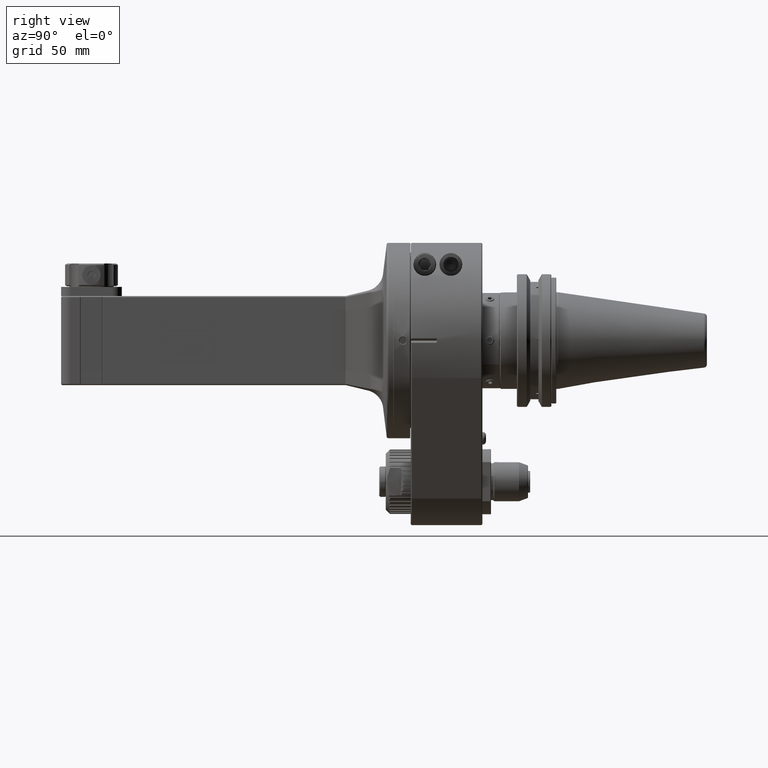
[diagram: clean part render]
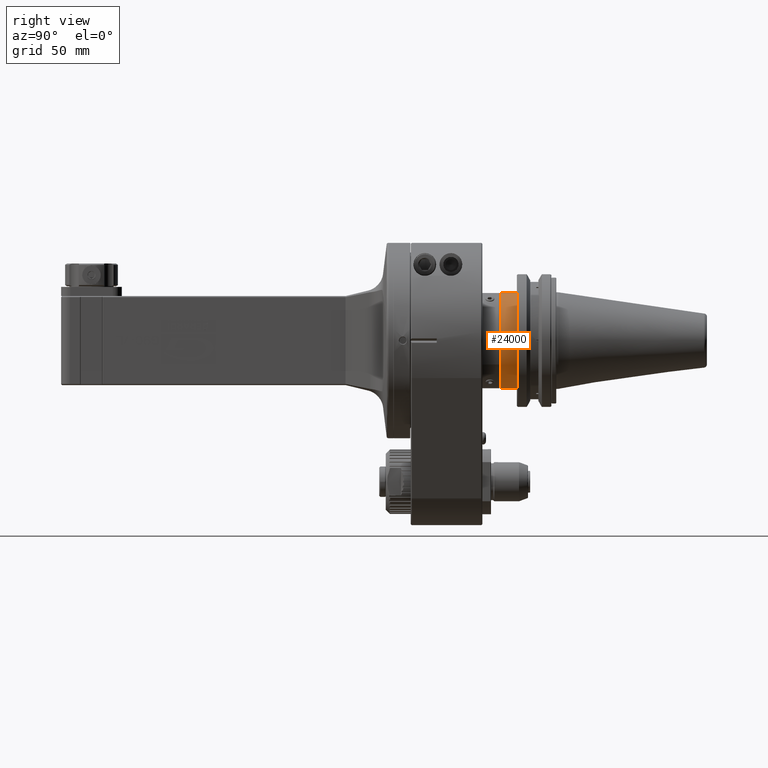
[diagram: same view with one face highlighted and labeled with its STEP entity id]
A machine part, right view. The second image highlights one B-rep face of the part: STEP entity #24000.
In plain terms, the highlighted cylindrical surface (bore or boss wall) has radius 22.225 mm, axis along (0, 1, 0).
Its self-contained STEP definition (entity closure, byte-faithful):
#2682=LINE('',#45828,#4757);
#4757=VECTOR('',#32634,22.225);
#5168=CYLINDRICAL_SURFACE('',#26280,22.225);
#6554=FACE_OUTER_BOUND('',#8055,.T.);
#8055=EDGE_LOOP('',(#21253,#21254,#21255,#21256,#21257));
#8992=CIRCLE('',#26024,22.225);
#9109=CIRCLE('',#26281,22.225);
#9110=CIRCLE('',#26282,22.225);
#11086=VERTEX_POINT('',#44938);
#11262=VERTEX_POINT('',#45827);
#11263=VERTEX_POINT('',#45829);
#14323=EDGE_CURVE('',#11086,#11086,#8992,.T.);
#14627=EDGE_CURVE('',#11086,#11262,#2682,.T.);
#14628=EDGE_CURVE('',#11262,#11263,#9109,.T.);
#14629=EDGE_CURVE('',#11263,#11262,#9110,.T.);
#21253=ORIENTED_EDGE('',*,*,#14323,.F.);
#21254=ORIENTED_EDGE('',*,*,#14627,.T.);
#21255=ORIENTED_EDGE('',*,*,#14628,.T.);
#21256=ORIENTED_EDGE('',*,*,#14629,.T.);
#21257=ORIENTED_EDGE('',*,*,#14627,.F.);
#24000=ADVANCED_FACE('',(#6554),#5168,.T.);
#26024=AXIS2_PLACEMENT_3D('',#44939,#31967,#31968);
#26280=AXIS2_PLACEMENT_3D('',#45826,#32632,#32633);
#26281=AXIS2_PLACEMENT_3D('',#45830,#32635,#32636);
#26282=AXIS2_PLACEMENT_3D('',#45831,#32637,#32638);
#31967=DIRECTION('center_axis',(0.,1.,0.));
#31968=DIRECTION('ref_axis',(0.,0.,1.));
#32632=DIRECTION('center_axis',(0.,1.,0.));
#32633=DIRECTION('ref_axis',(0.,0.,1.));
#32634=DIRECTION('',(0.,-1.,0.));
#32635=DIRECTION('center_axis',(0.,1.,0.));
#32636=DIRECTION('ref_axis',(0.,0.,1.));
#32637=DIRECTION('center_axis',(0.,1.,0.));
#32638=DIRECTION('ref_axis',(0.,0.,1.));
#44938=CARTESIAN_POINT('',(-2.72177751110499E-15,195.9,-22.225));
#44939=CARTESIAN_POINT('Origin',(0.,195.9,0.));
#45826=CARTESIAN_POINT('Origin',(0.,1.85,0.));
#45827=CARTESIAN_POINT('',(-2.72177751110499E-15,188.5003801731,-22.225));
#45828=CARTESIAN_POINT('',(-2.72177751110499E-15,1.85,-22.225));
#45829=CARTESIAN_POINT('',(-22.2250000000078,188.500380173093,1.96463685251706E-13));
#45830=CARTESIAN_POINT('Origin',(0.,188.5003801731,0.));
#45831=CARTESIAN_POINT('Origin',(0.,188.5003801731,0.));